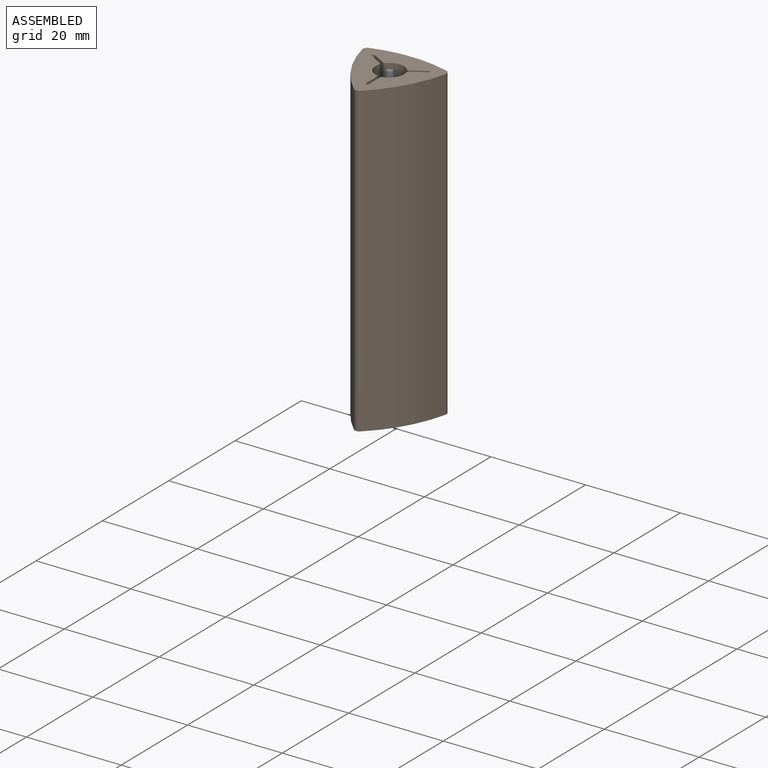
[diagram: assembled view]
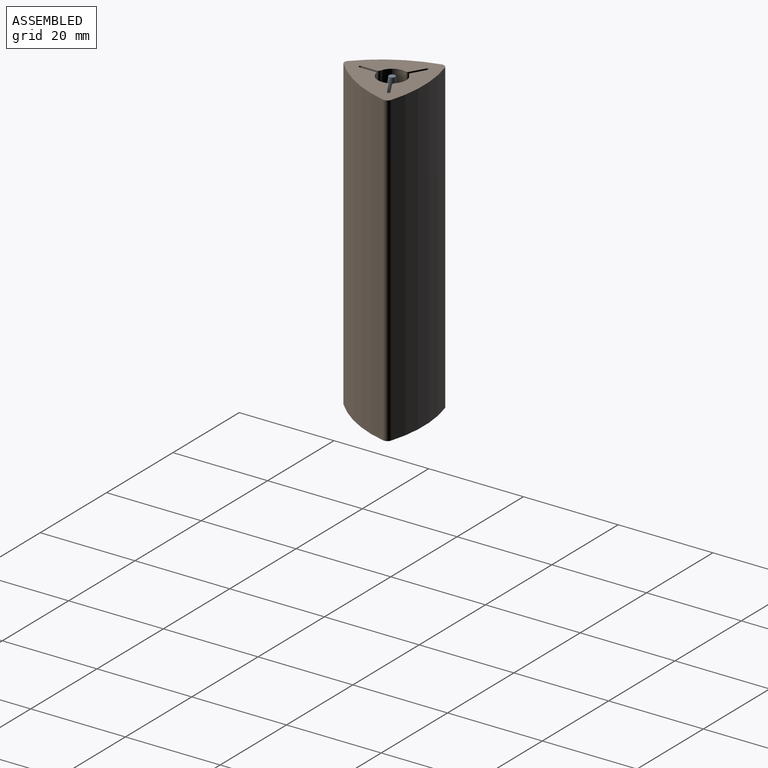
[diagram: assembled view, second angle]
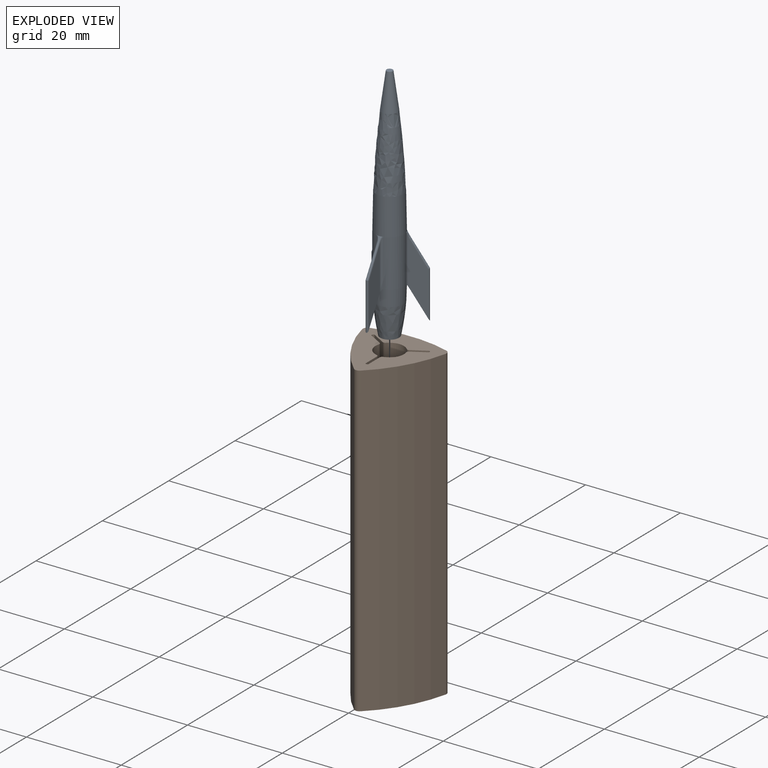
[diagram: exploded view]
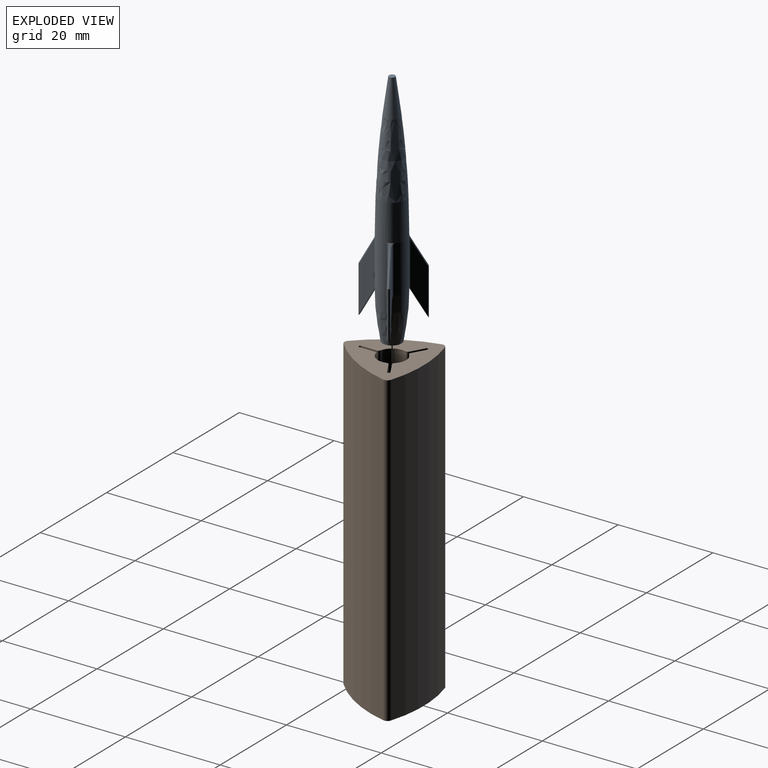
[diagram: exploded view, second angle]
ASSEMBLY  parts=2 mates=3
PART A: 40 faces, bbox 13.5x11.9x50.6 mm
  f0: cylinder r=3mm len=10mm, axis (0,0,1), area 49mm2, adj f3,f4,f13,f19,f35,f36
  f1: cylinder r=3mm len=10mm, axis (0,0,1), area 49mm2, adj f3,f4,f10,f14,f31,f32
  f2: cylinder r=3mm len=10mm, axis (0,0,1), area 49mm2, adj f3,f4,f11,f18,f28,f39
  f3: revolved ~10x6mm, area 168.4mm2, adj f0,f1,f2,f6,f23,f25,f27
  f4: revolved ~30.58x6mm, area 427.1mm2, adj f0,f1,f2,f5,f22,f24,f26,f28
  f5: plane 1.32x1.32mm, normal (0,0,1), area 1.4mm2, adj f4
  f6: plane 3.98x3.98mm, normal (0,0,-1), area 12.4mm2, adj f3
  f7: plane 15.19x3.36mm, normal (1,0,0), area 31mm2, adj f8,f11,f27,f30
  f8: cylinder r=0.3mm len=9.92mm, axis (0,0,-1), area 9.2mm2, adj f7,f9,f27,f29
  f9: plane 15.19x3.36mm, normal (-1,0,0), area 31mm2, adj f8,f10,f27,f30
  f10: cylinder r=0.5mm len=10.65mm, axis (0,0,-1), area 6.5mm2, adj f1,f9,f27,f31
  f11: cylinder r=0.5mm len=10.65mm, axis (0,0,-1), area 6.5mm2, adj f2,f7,f27,f28
  f12: plane 15.19x2.92mm, normal (0.5,-0.87,0), area 31mm2, adj f13,f16,f25,f34
  f13: cylinder r=0.5mm len=10.65mm, axis (0,0,-1), area 6.5mm2, adj f0,f12,f25,f35
  f14: cylinder r=0.5mm len=10.65mm, axis (0,0,-1), area 6.5mm2, adj f1,f15,f25,f32
  f15: plane 15.19x2.92mm, normal (-0.5,0.87,0), area 31mm2, adj f14,f16,f25,f34
  f16: cylinder r=0.3mm len=9.92mm, axis (0,0,-1), area 9.2mm2, adj f12,f15,f25,f33
  f17: plane 15.19x2.92mm, normal (0.5,0.87,0), area 31mm2, adj f18,f21,f23,f38
  f18: cylinder r=0.5mm len=10.65mm, axis (0,0,-1), area 6.5mm2, adj f2,f17,f23,f39
  f19: cylinder r=0.5mm len=10.65mm, axis (0,0,-1), area 6.5mm2, adj f0,f20,f23,f36
  f20: plane 15.19x2.92mm, normal (-0.5,-0.87,0), area 31mm2, adj f19,f21,f23,f38
  f21: cylinder r=0.3mm len=9.92mm, axis (0,0,-1), area 9.2mm2, adj f17,f20,f23,f37
  f22: cone r=3mm half-angle=30deg, axis (0,0,-1), area 0.6mm2, adj f4,f36,f39
  f23: cone r=7mm half-angle=30deg, axis (0,0,-1), area 5.4mm2, adj f3,f17,f18,f19,f20,f21
  f24: cone r=3mm half-angle=30deg, axis (0,0,-1), area 0.6mm2, adj f4,f32,f35
  f25: cone r=7mm half-angle=30deg, axis (0,0,-1), area 5.4mm2, adj f3,f12,f13,f14,f15,f16
  f26: cone r=3mm half-angle=30deg, axis (0,0,-1), area 0.6mm2, adj f4,f28,f31
  f27: cone r=7mm half-angle=30deg, axis (0,0,-1), area 5.4mm2, adj f3,f7,f8,f9,f10,f11
  f28: bspline ~1.84x1.08mm, area 0.5mm2, adj f2,f4,f11,f26,f30
  f29: sphere r=0.3mm, area 0.1mm2, adj f8,f30
  f30: cylinder r=0.3mm len=5.85mm, axis (0,-0.5,0.87), area 6.2mm2, adj f7,f9,f28,f29,f31
  f31: bspline ~1.84x1.08mm, area 0.5mm2, adj f1,f4,f10,f26,f30
  f32: bspline ~1.84x1.36mm, area 0.5mm2, adj f1,f4,f14,f24,f34
  f33: sphere r=0.3mm, area 0.1mm2, adj f16,f34
  f34: cylinder r=0.3mm len=5.85mm, axis (0.43,0.25,0.87), area 6.2mm2, adj f12,f15,f32,f33,f35
  f35: bspline ~1.91x1.43mm, area 0.5mm2, adj f0,f4,f13,f24,f34
  f36: bspline ~1.91x1.43mm, area 0.5mm2, adj f0,f4,f19,f22,f38
  f37: sphere r=0.3mm, area 0.1mm2, adj f21,f38
  f38: cylinder r=0.3mm len=5.85mm, axis (-0.43,0.25,0.87), area 6.2mm2, adj f17,f20,f36,f37,f39
  f39: bspline ~1.91x1.36mm, area 0.5mm2, adj f2,f4,f18,f22,f38
PART B: 51 faces, bbox 17.7x17.4x65 mm
  f0: plane 8.58x1.31mm, normal (0,0,-1), area 5.1mm2, adj f14,f15,f16,f29,f39,f40
  f1: plane 7.43x4.29mm, normal (0,0,-1), area 5.1mm2, adj f10,f11,f12,f27,f37,f38
  f2: plane 17.68x16.76mm, normal (0,0,1), area 159mm2, adj f3,f4,f5,f6,f7,f8,f10,f11
  f3: cylinder r=1mm len=65mm, axis (0,0,-1), area 97.1mm2, adj f2,f4,f8,f9
  f4: cylinder r=27.5mm len=65mm, axis (0,0,-1), area 1073.4mm2, adj f2,f3,f5,f9
  f5: cylinder r=1mm len=65mm, axis (0,0,-1), area 97.1mm2, adj f2,f4,f6,f9
  f6: cylinder r=27.5mm len=65mm, axis (0,0,-1), area 1073.4mm2, adj f2,f5,f7,f9
  f7: cylinder r=1mm len=65mm, axis (0,0,-1), area 97.1mm2, adj f2,f6,f8,f9
  f8: cylinder r=27.5mm len=65mm, axis (0,0,-1), area 1073.4mm2, adj f2,f3,f7,f9
  f9: plane 17.68x16.76mm, normal (0,0,-1), area 178.7mm2, adj f3,f4,f5,f6,f7,f8,f33
  f10: plane 47.45x3.3mm, normal (1,0,0), area 154.9mm2, adj f1,f2,f21,f27,f37,f42
  f11: cylinder r=3mm len=47mm, axis (0,0,1), area 230.3mm2, adj f1,f2,f37,f38
  f12: plane 47.45x2.86mm, normal (0.5,-0.87,0), area 154.9mm2, adj f1,f2,f13,f27,f38,f45
  f13: cylinder r=0.3mm len=47.71mm, axis (0,0,1), area 44.9mm2, adj f2,f12,f14,f45
  f14: plane 47.45x2.86mm, normal (-0.5,0.87,0), area 154.9mm2, adj f0,f2,f13,f29,f39,f45
  f15: cylinder r=3mm len=47mm, axis (0,0,1), area 230.3mm2, adj f0,f2,f39,f40
  f16: plane 47.45x2.86mm, normal (0.5,0.87,0), area 154.9mm2, adj f0,f2,f17,f29,f40,f48
  f17: cylinder r=0.3mm len=47.71mm, axis (0,0,1), area 44.9mm2, adj f2,f16,f18,f48
  f18: plane 47.45x2.86mm, normal (-0.5,-0.87,0), area 154.9mm2, adj f2,f17,f26,f28,f41,f48
  f19: cylinder r=3mm len=47mm, axis (0,0,1), area 230.3mm2, adj f2,f26,f36,f41
  f20: plane 47.45x3.3mm, normal (-1,0,0), area 154.9mm2, adj f2,f21,f26,f28,f36,f42
  f21: cylinder r=0.3mm len=47.71mm, axis (0,0,1), area 44.9mm2, adj f2,f10,f20,f42
  f22: cylinder r=26mm len=11mm, axis (0,0,1), area 113.8mm2, adj f27,f30,f43,f46
  f23: cylinder r=26mm len=11mm, axis (0,0,1), area 113.8mm2, adj f29,f32,f46,f49
  f24: cylinder r=26mm len=11mm, axis (0,0,1), area 113.8mm2, adj f28,f31,f43,f49
  f25: plane 9.48x8.69mm, normal (0,0,1), area 35.4mm2, adj f30,f31,f32,f35
  f26: plane 7.43x4.29mm, normal (0,0,-1), area 5.1mm2, adj f18,f19,f20,f28,f36,f41
  f27: torus R=24mm, axis (0,0,1), area 31.4mm2, adj f1,f10,f12,f22,f42,f45
  f28: torus R=24mm, axis (0,0,1), area 31.4mm2, adj f18,f20,f24,f26,f42,f48
  f29: torus R=24mm, axis (0,0,1), area 31.4mm2, adj f0,f14,f16,f23,f45,f48
  f30: torus R=24mm, axis (0,0,1), area 31.6mm2, adj f22,f25,f44,f47
  f31: torus R=24mm, axis (0,0,1), area 31.6mm2, adj f24,f25,f44,f50
  f32: torus R=24mm, axis (0,0,1), area 31.6mm2, adj f23,f25,f47,f50
  f33: cylinder r=2.25mm len=4.5mm, axis (0,0,-1), area 35.3mm2, adj f9,f34
  f34: plane 4.5x4.5mm, normal (0,0,-1), area 3.3mm2, adj f33,f35
  f35: cylinder r=2mm len=4mm, axis (0,0,-1), area 6.3mm2, adj f25,f34
  f36: cylinder r=0.5mm len=47mm, axis (0,0,1), area 31.5mm2, adj f2,f19,f20,f26
  f37: cylinder r=0.5mm len=47mm, axis (0,0,1), area 31.5mm2, adj f1,f2,f10,f11
  f38: cylinder r=0.5mm len=47mm, axis (0,0,1), area 31.5mm2, adj f1,f2,f11,f12
  f39: cylinder r=0.5mm len=47mm, axis (0,0,1), area 31.5mm2, adj f0,f2,f14,f15
  f40: cylinder r=0.5mm len=47mm, axis (0,0,1), area 31.5mm2, adj f0,f2,f15,f16
  f41: cylinder r=0.5mm len=47mm, axis (0,0,1), area 31.5mm2, adj f2,f18,f19,f26
  f42: sphere r=2mm, area 5.9mm2, adj f10,f20,f21,f27,f28,f43
  f43: cylinder r=2mm len=11mm, axis (0,0,-1), area 37.3mm2, adj f22,f24,f42,f44
  f44: sphere r=2mm, area 6.8mm2, adj f30,f31,f43
  f45: sphere r=2mm, area 5.9mm2, adj f12,f13,f14,f27,f29,f46
  f46: cylinder r=2mm len=11mm, axis (0,0,-1), area 37.3mm2, adj f22,f23,f45,f47
  f47: sphere r=2mm, area 6.8mm2, adj f30,f32,f46
  f48: sphere r=2mm, area 5.9mm2, adj f16,f17,f18,f28,f29,f49
  f49: cylinder r=2mm len=11mm, axis (0,0,-1), area 37.3mm2, adj f23,f24,f48,f50
  f50: sphere r=2mm, area 6.8mm2, adj f31,f32,f49
PLACE A rot(axis=(0,0,1),60deg) t=(-18.08,-10.37,-8.52)mm
PLACE B rot(axis=(0,0,-1),60deg) t=(-18.08,-10.37,-23.01)mm
MATE cylindrical A.f0 <-> B.f19  axis (0,0,1) through (-18.08,-10.37,6.48)mm
MATE planar B.f12 <-> A.f7  axis (-0.5,-0.87,0) through (-22.31,-7.58,18.46)mm
MATE planar A.f0 <-> B.f19  axis (0,0,1) through (-18.08,-10.37,41.99)mm
